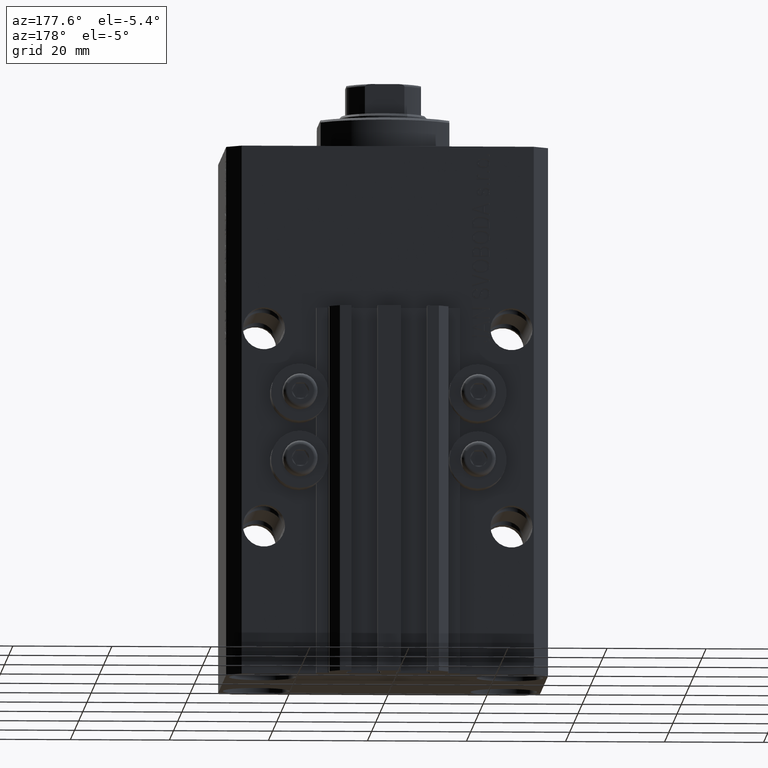
[diagram: clean part render]
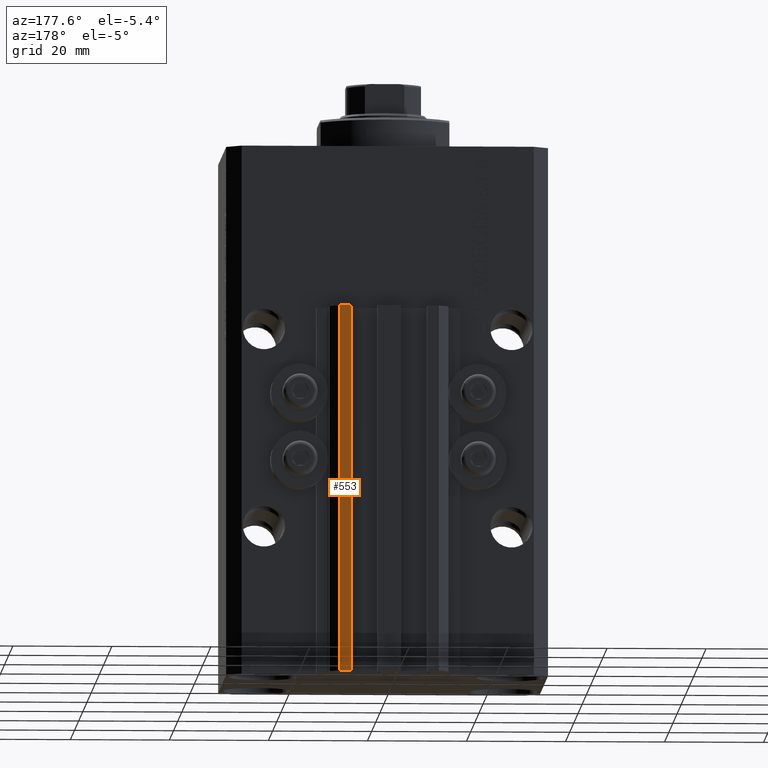
[diagram: same view with one face highlighted and labeled with its STEP entity id]
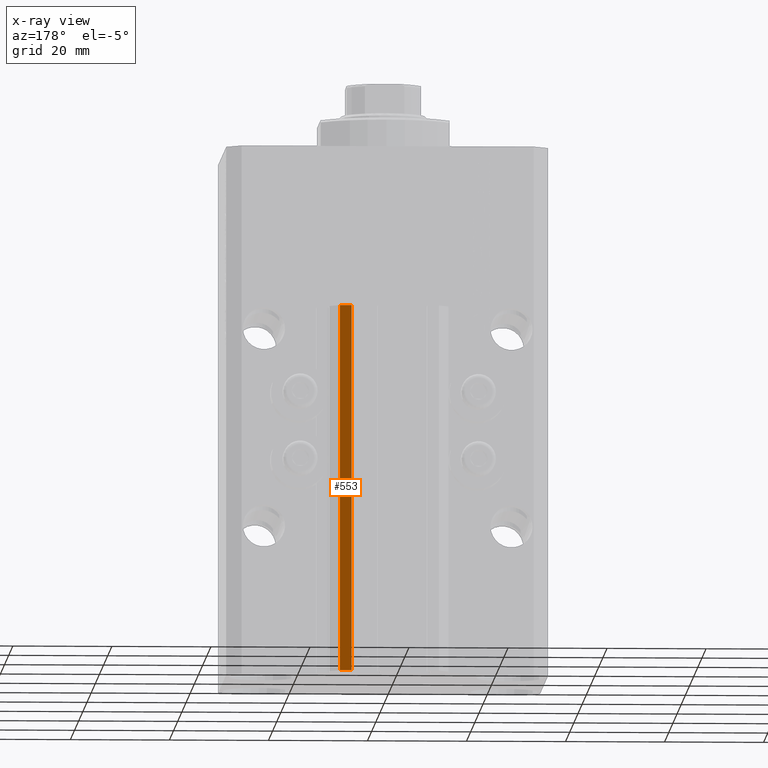
[diagram: x-ray of the same camera — body ghosted, the highlighted face saturated]
A machine part, auxiliary view. The second image highlights one B-rep face of the part: STEP entity #553.
The next image is the same camera in x-ray: the body ghosted, the highlighted face saturated — about 0% of this face is hidden behind the body in this view.
In plain terms, the highlighted planar face has unit normal (-0, 1, 0).
Its self-contained STEP definition (entity closure, byte-faithful):
#553 = ADVANCED_FACE ( 'NONE', ( #28561 ), #39392, .T. ) ;
#611 = EDGE_LOOP ( 'NONE', ( #7920, #20168, #7805, #1919 ) ) ;
#1919 = ORIENTED_EDGE ( 'NONE', *, *, #45972, .T. ) ;
#2416 = LINE ( 'NONE', #17623, #26951 ) ;
#2687 = AXIS2_PLACEMENT_3D ( 'NONE', #43464, #43941, #22009 ) ;
#5266 = EDGE_CURVE ( 'NONE', #10422, #41519, #7427, .T. ) ;
#5553 = CARTESIAN_POINT ( 'NONE',  ( 7.649999999999995026, 30.49999999999949196, -33.00000000000000000 ) ) ;
#6755 = DIRECTION ( 'NONE',  ( 0.000000000000000000, 0.000000000000000000, 1.000000000000000000 ) ) ;
#7427 = LINE ( 'NONE', #29407, #25921 ) ;
#7805 = ORIENTED_EDGE ( 'NONE', *, *, #18011, .T. ) ;
#7920 = ORIENTED_EDGE ( 'NONE', *, *, #9709, .F. ) ;
#9709 = EDGE_CURVE ( 'NONE', #41519, #20640, #41945, .T. ) ;
#10422 = VERTEX_POINT ( 'NONE', #33444 ) ;
#12296 = CARTESIAN_POINT ( 'NONE',  ( 9.999999999999994671, 30.49999999999949551, -33.00000000000000000 ) ) ;
#14624 = CARTESIAN_POINT ( 'NONE',  ( 9.999999999999994671, 30.49999999999949551, -33.00000000000000000 ) ) ;
#15625 = DIRECTION ( 'NONE',  ( 0.000000000000000000, 0.000000000000000000, 1.000000000000000000 ) ) ;
#17623 = CARTESIAN_POINT ( 'NONE',  ( 7.649999999999995026, 30.49999999999949196, -107.0000000000000000 ) ) ;
#18011 = EDGE_CURVE ( 'NONE', #10422, #41201, #40398, .T. ) ;
#19791 = DIRECTION ( 'NONE',  ( -1.000000000000000000, -1.476360405086644852E-15, 0.000000000000000000 ) ) ;
#19963 = VECTOR ( 'NONE', #44722, 1000.000000000000000 ) ;
#20168 = ORIENTED_EDGE ( 'NONE', *, *, #5266, .F. ) ;
#20640 = VERTEX_POINT ( 'NONE', #5553 ) ;
#22009 = DIRECTION ( 'NONE',  ( -1.000000000000000000, -1.476360405086644852E-15, 0.000000000000000000 ) ) ;
#25176 = VECTOR ( 'NONE', #19791, 1000.000000000000000 ) ;
#25708 = CARTESIAN_POINT ( 'NONE',  ( 9.999999999999994671, 30.49999999999949551, -107.0000000000000000 ) ) ;
#25921 = VECTOR ( 'NONE', #15625, 1000.000000000000000 ) ;
#26951 = VECTOR ( 'NONE', #6755, 1000.000000000000000 ) ;
#28561 = FACE_OUTER_BOUND ( 'NONE', #611, .T. ) ;
#29407 = CARTESIAN_POINT ( 'NONE',  ( 9.999999999999994671, 30.49999999999949551, -107.0000000000000000 ) ) ;
#33444 = CARTESIAN_POINT ( 'NONE',  ( 9.999999999999994671, 30.49999999999949551, -107.0000000000000000 ) ) ;
#36623 = CARTESIAN_POINT ( 'NONE',  ( 7.649999999999995026, 30.49999999999949196, -107.0000000000000000 ) ) ;
#39392 = PLANE ( 'NONE',  #2687 ) ;
#40398 = LINE ( 'NONE', #25708, #19963 ) ;
#41201 = VERTEX_POINT ( 'NONE', #36623 ) ;
#41519 = VERTEX_POINT ( 'NONE', #14624 ) ;
#41945 = LINE ( 'NONE', #12296, #25176 ) ;
#43464 = CARTESIAN_POINT ( 'NONE',  ( 9.999999999999994671, 30.49999999999949551, -107.0000000000000000 ) ) ;
#43941 = DIRECTION ( 'NONE',  ( -1.476360405086644852E-15, 1.000000000000000000, 0.000000000000000000 ) ) ;
#44722 = DIRECTION ( 'NONE',  ( -1.000000000000000000, -1.476360405086644852E-15, 0.000000000000000000 ) ) ;
#45972 = EDGE_CURVE ( 'NONE', #41201, #20640, #2416, .T. ) ;